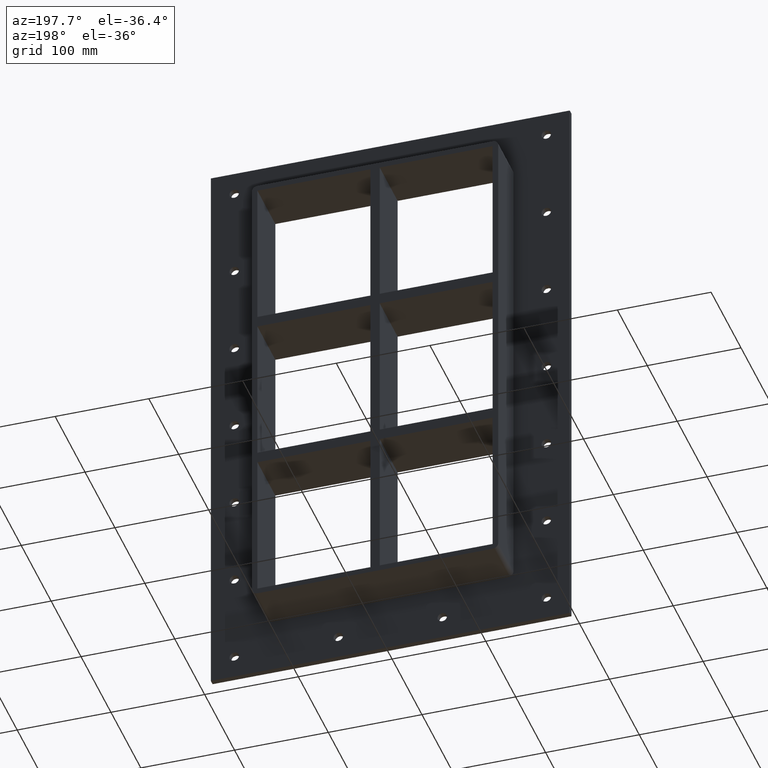
[diagram: clean part render]
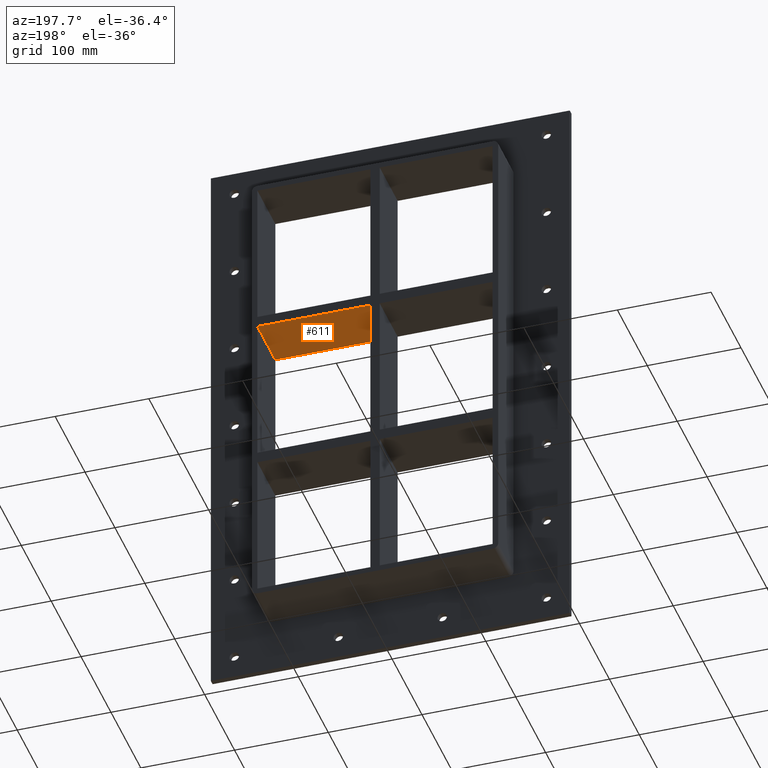
[diagram: same view with one face highlighted and labeled with its STEP entity id]
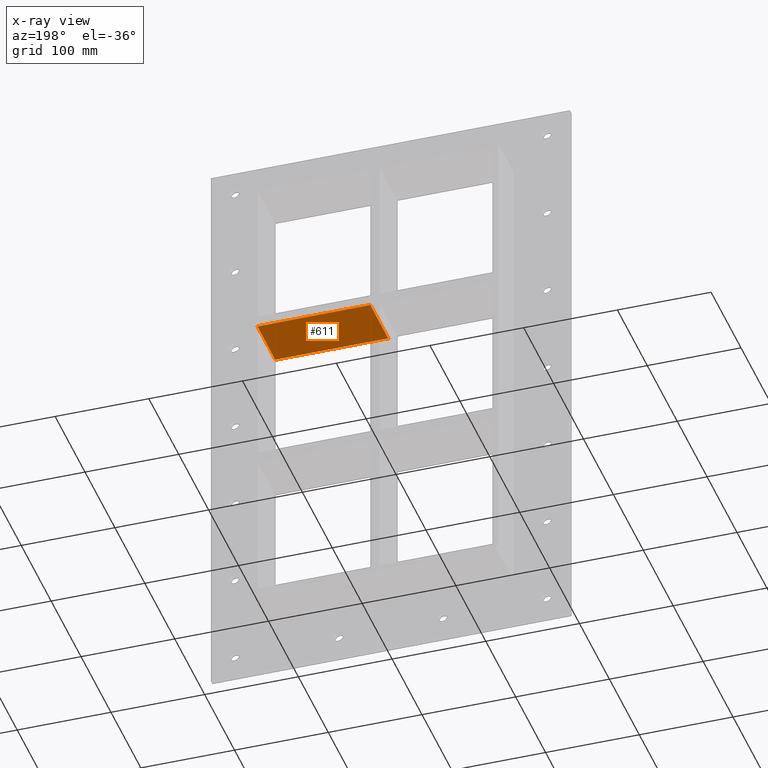
[diagram: x-ray of the same camera — body ghosted, the highlighted face saturated]
A machine part, auxiliary view. The second image highlights one B-rep face of the part: STEP entity #611.
The next image is the same camera in x-ray: the body ghosted, the highlighted face saturated — about 0% of this face is hidden behind the body in this view.
In plain terms, the highlighted planar face has unit normal (0, 0, -1).
Its self-contained STEP definition (entity closure, byte-faithful):
#572=CARTESIAN_POINT('',(125.50000000000182,-3.0,79.74999999999072));
#573=DIRECTION('',(0.0,0.0,-1.0));
#574=DIRECTION('',(-1.0,0.0,0.0));
#575=AXIS2_PLACEMENT_3D('',#572,#573,#574);
#576=PLANE('',#575);
#577=CARTESIAN_POINT('',(5.0,57.0,79.749999999990635));
#578=VERTEX_POINT('',#577);
#579=CARTESIAN_POINT('',(5.0,-3.0,79.749999999990621));
#580=VERTEX_POINT('',#579);
#581=CARTESIAN_POINT('',(5.0,57.0,79.749999999990649));
#582=DIRECTION('',(0.0,-1.0,0.0));
#583=VECTOR('',#582,60.0);
#584=LINE('',#581,#583);
#585=EDGE_CURVE('',#578,#580,#584,.T.);
#586=ORIENTED_EDGE('',*,*,#585,.F.);
#587=CARTESIAN_POINT('',(125.50000000000182,57.0,79.74999999999072));
#588=VERTEX_POINT('',#587);
#589=CARTESIAN_POINT('',(125.50000000000182,57.0,79.74999999999072));
#590=DIRECTION('',(-1.0,0.0,0.0));
#591=VECTOR('',#590,120.50000000000182);
#592=LINE('',#589,#591);
#593=EDGE_CURVE('',#588,#578,#592,.T.);
#594=ORIENTED_EDGE('',*,*,#593,.F.);
#595=CARTESIAN_POINT('',(125.50000000000182,-3.0,79.74999999999072));
#596=VERTEX_POINT('',#595);
#597=CARTESIAN_POINT('',(125.49999999999999,-3.0,79.749999999990735));
#598=DIRECTION('',(0.0,1.0,0.0));
#599=VECTOR('',#598,60.000000000000007);
#600=LINE('',#597,#599);
#601=EDGE_CURVE('',#596,#588,#600,.T.);
#602=ORIENTED_EDGE('',*,*,#601,.F.);
#603=CARTESIAN_POINT('',(125.50000000000182,-3.0,79.74999999999072));
#604=DIRECTION('',(-1.0,0.0,0.0));
#605=VECTOR('',#604,120.50000000000182);
#606=LINE('',#603,#605);
#607=EDGE_CURVE('',#596,#580,#606,.T.);
#608=ORIENTED_EDGE('',*,*,#607,.T.);
#609=EDGE_LOOP('',(#586,#594,#602,#608));
#610=FACE_OUTER_BOUND('',#609,.T.);
#611=ADVANCED_FACE('',(#610),#576,.T.);